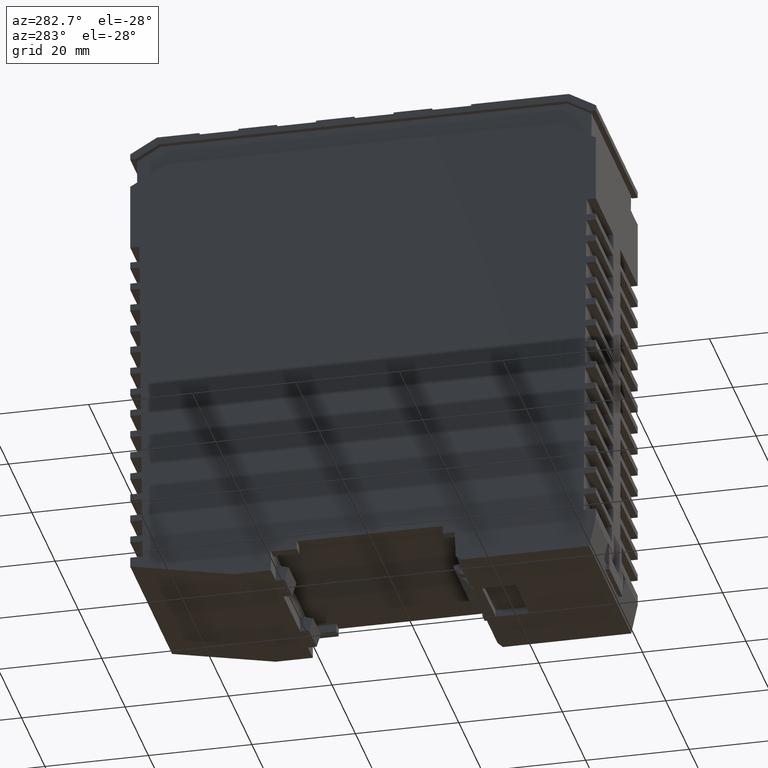
[diagram: clean part render]
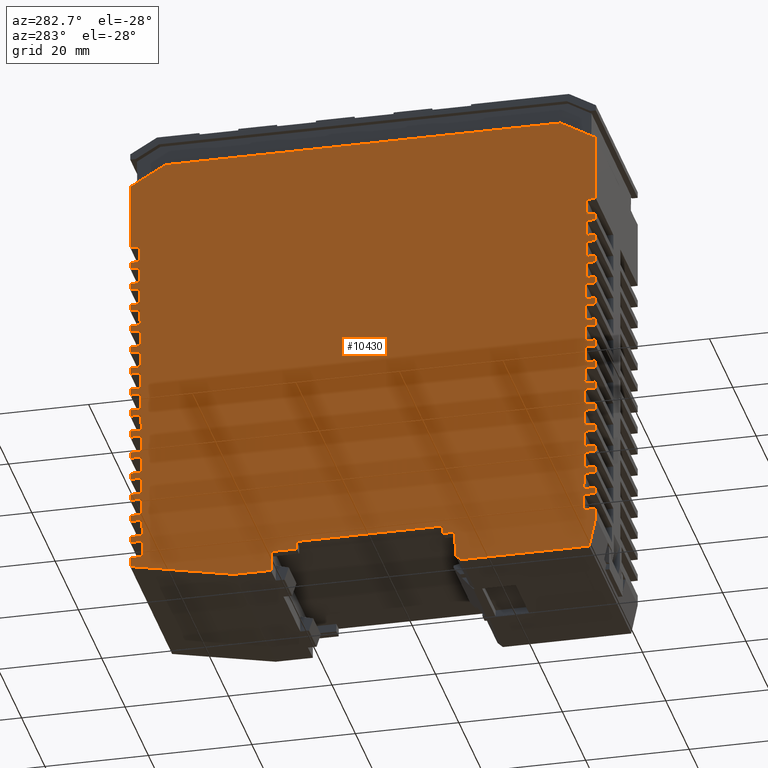
[diagram: same view with one face highlighted and labeled with its STEP entity id]
A machine part, auxiliary view. The second image highlights one B-rep face of the part: STEP entity #10430.
In plain terms, the highlighted planar face has unit normal (-1, 0, 0).
Its self-contained STEP definition (entity closure, byte-faithful):
#100=CARTESIAN_POINT('',(166.12362378727,69.6999999999998,
-34.799790209557));
#110=VERTEX_POINT('',#100);
#280=CARTESIAN_POINT('',(166.12362378727,67.3400426377198,
-34.799790209557));
#290=VERTEX_POINT('',#280);
#320=CARTESIAN_POINT('',(166.12362378727,24.6999996755416,
-34.799790209557));
#330=DIRECTION('',(-1.00166402301343E-25,1.,-8.52299310107004E-24));
#340=VECTOR('',#330,1.);
#350=LINE('',#320,#340);
#360=EDGE_CURVE('',#290,#110,#350,.T.);
#590=CARTESIAN_POINT('',(162.877748685351,67.3683689605996,
-34.7997902059751));
#600=VERTEX_POINT('',#590);
#630=CARTESIAN_POINT('',(124.800000351686,67.7006684360773,
-34.7997901639554));
#640=DIRECTION('',(-0.999961923064172,0.00872653549837376,
1.10348171245818E-9));
#650=VECTOR('',#640,1.);
#660=LINE('',#630,#650);
#670=EDGE_CURVE('',#290,#600,#660,.T.);
#1690=CARTESIAN_POINT('',(162.877748685351,24.6999996755416,
-34.7997902059751));
#1700=DIRECTION('',(1.00166402301343E-25,-1.,8.52299310107004E-24));
#1710=VECTOR('',#1700,1.);
#1720=LINE('',#1690,#1710);
#1730=CARTESIAN_POINT('',(162.877748685351,69.6999999999998,
-34.7997902059751));
#1740=VERTEX_POINT('',#1730);
#1750=EDGE_CURVE('',#1740,#600,#1720,.T.);
#1950=CARTESIAN_POINT('',(124.800000351686,24.6999996755416,
-34.7997901639554));
#1960=DIRECTION('',(-1.10352373126048E-9,-8.52299310118057E-24,-1.));
#1970=DIRECTION('',(1.00166402301343E-25,-1.,8.52299310107004E-24));
#1980=AXIS2_PLACEMENT_3D('',#1950,#1960,#1970);
#1990=PLANE('',#1980);
#2000=CARTESIAN_POINT('',(124.800000351686,69.6999999999998,
-34.7997901639554));
#2010=DIRECTION('',(-1.,-3.82894150652559E-24,1.10352373126048E-9));
#2020=VECTOR('',#2010,1.);
#2030=LINE('',#2000,#2020);
#2040=CARTESIAN_POINT('',(168.000000202668,69.6999999999998,
-34.7997902116276));
#2050=VERTEX_POINT('',#2040);
#2060=EDGE_CURVE('',#2050,#110,#2030,.T.);
#2070=ORIENTED_EDGE('',*,*,#2060,.F.);
#2080=ORIENTED_EDGE('',*,*,#360,.T.);
#2090=ORIENTED_EDGE('',*,*,#670,.F.);
#2100=ORIENTED_EDGE('',*,*,#1750,.T.);
#2110=CARTESIAN_POINT('',(161.621565686345,69.6999999999998,
-34.7997902045888));
#2120=VERTEX_POINT('',#2110);
#2130=EDGE_CURVE('',#1740,#2120,#2030,.T.);
#2140=ORIENTED_EDGE('',*,*,#2130,.F.);
#2150=CARTESIAN_POINT('',(161.621565686345,24.6999996755416,
-34.7997902045888));
#2160=DIRECTION('',(-1.00166402301343E-25,1.,-8.52299310107004E-24));
#2170=VECTOR('',#2160,1.);
#2180=LINE('',#2150,#2170);
#2190=CARTESIAN_POINT('',(161.621565686345,67.3793315035529,
-34.7997902045888));
#2200=VERTEX_POINT('',#2190);
#2210=EDGE_CURVE('',#2200,#2120,#2180,.T.);
#2220=ORIENTED_EDGE('',*,*,#2210,.T.);
#2230=CARTESIAN_POINT('',(158.379806786275,67.4076219048833,
-34.7997902010115));
#2240=VERTEX_POINT('',#2230);
#2250=EDGE_CURVE('',#2200,#2240,#660,.T.);
#2260=ORIENTED_EDGE('',*,*,#2250,.F.);
#2270=CARTESIAN_POINT('',(158.379806786275,24.6999996755416,
-34.7997902010115));
#2280=DIRECTION('',(1.00166402301343E-25,-1.,8.52299310107004E-24));
#2290=VECTOR('',#2280,1.);
#2300=LINE('',#2270,#2290);
#2310=CARTESIAN_POINT('',(158.379806786275,69.6999999999998,
-34.7997902010115));
#2320=VERTEX_POINT('',#2310);
#2330=EDGE_CURVE('',#2320,#2240,#2300,.T.);
#2340=ORIENTED_EDGE('',*,*,#2330,.T.);
#2350=CARTESIAN_POINT('',(157.119507585421,69.6999999999998,
-34.7997901996207));
#2360=VERTEX_POINT('',#2350);
#2370=EDGE_CURVE('',#2320,#2360,#2030,.T.);
#2380=ORIENTED_EDGE('',*,*,#2370,.F.);
#2390=CARTESIAN_POINT('',(157.119507585421,24.6999996755416,
-34.7997901996207));
#2400=DIRECTION('',(-1.00166402301343E-25,1.,-8.52299310107004E-24));
#2410=VECTOR('',#2400,1.);
#2420=LINE('',#2390,#2410);
#2430=CARTESIAN_POINT('',(157.119507585421,67.418620369386,
-34.7997901996207));
#2440=VERTEX_POINT('',#2430);
#2450=EDGE_CURVE('',#2440,#2360,#2420,.T.);
#2460=ORIENTED_EDGE('',*,*,#2450,.T.);
#2470=CARTESIAN_POINT('',(153.8818648872,67.4468748491671,
-34.7997901960479));
#2480=VERTEX_POINT('',#2470);
#2490=EDGE_CURVE('',#2440,#2480,#660,.T.);
#2500=ORIENTED_EDGE('',*,*,#2490,.F.);
#2510=CARTESIAN_POINT('',(153.8818648872,24.6999996755416,
-34.7997901960479));
#2520=DIRECTION('',(1.00166402301343E-25,-1.,8.52299310107004E-24));
#2530=VECTOR('',#2520,1.);
#2540=LINE('',#2510,#2530);
#2550=CARTESIAN_POINT('',(153.8818648872,69.6999999999998,
-34.7997901960479));
#2560=VERTEX_POINT('',#2550);
#2570=EDGE_CURVE('',#2560,#2480,#2540,.T.);
#2580=ORIENTED_EDGE('',*,*,#2570,.T.);
#2590=CARTESIAN_POINT('',(152.617449484496,69.6999999999998,
-34.7997901946526));
#2600=VERTEX_POINT('',#2590);
#2610=EDGE_CURVE('',#2560,#2600,#2030,.T.);
#2620=ORIENTED_EDGE('',*,*,#2610,.F.);
#2630=CARTESIAN_POINT('',(152.617449484496,24.6999996755416,
-34.7997901946526));
#2640=DIRECTION('',(-1.00166402301343E-25,1.,-8.52299310107004E-24));
#2650=VECTOR('',#2640,1.);
#2660=LINE('',#2630,#2650);
#2670=CARTESIAN_POINT('',(152.617449484496,67.4579092352191,
-34.7997901946526));
#2680=VERTEX_POINT('',#2670);
#2690=EDGE_CURVE('',#2680,#2600,#2660,.T.);
#2700=ORIENTED_EDGE('',*,*,#2690,.T.);
#2710=CARTESIAN_POINT('',(149.383922988124,67.4861277934508,
-34.7997901910843));
#2720=VERTEX_POINT('',#2710);
#2730=EDGE_CURVE('',#2680,#2720,#660,.T.);
#2740=ORIENTED_EDGE('',*,*,#2730,.F.);
#2750=CARTESIAN_POINT('',(149.383922988124,24.6999996755416,
-34.7997901910843));
#2760=DIRECTION('',(1.00166402301343E-25,-1.,8.52299310107004E-24));
#2770=VECTOR('',#2760,1.);
#2780=LINE('',#2750,#2770);
#2790=CARTESIAN_POINT('',(149.383922988124,69.6999999999998,
-34.7997901910843));
#2800=VERTEX_POINT('',#2790);
#2810=EDGE_CURVE('',#2800,#2720,#2780,.T.);
#2820=ORIENTED_EDGE('',*,*,#2810,.T.);
#2830=CARTESIAN_POINT('',(148.115391383572,69.6999999999998,
-34.7997901896845));
#2840=VERTEX_POINT('',#2830);
#2850=EDGE_CURVE('',#2800,#2840,#2030,.T.);
#2860=ORIENTED_EDGE('',*,*,#2850,.F.);
#2870=CARTESIAN_POINT('',(148.115391383572,24.6999996755416,
-34.7997901896845));
#2880=DIRECTION('',(-1.00166402301343E-25,1.,-8.52299310107004E-24));
#2890=VECTOR('',#2880,1.);
#2900=LINE('',#2870,#2890);
#2910=CARTESIAN_POINT('',(148.115391383572,67.4971981010521,
-34.7997901896845));
#2920=VERTEX_POINT('',#2910);
#2930=EDGE_CURVE('',#2920,#2840,#2900,.T.);
#2940=ORIENTED_EDGE('',*,*,#2930,.T.);
#2950=CARTESIAN_POINT('',(144.885981089049,67.5253807377346,
-34.7997901861207));
#2960=VERTEX_POINT('',#2950);
#2970=EDGE_CURVE('',#2920,#2960,#660,.T.);
#2980=ORIENTED_EDGE('',*,*,#2970,.F.);
#2990=CARTESIAN_POINT('',(144.885981089049,24.6999996755416,
-34.7997901861207));
#3000=DIRECTION('',(1.00166402301343E-25,-1.,8.52299310107004E-24));
#3010=VECTOR('',#3000,1.);
#3020=LINE('',#2990,#3010);
#3030=CARTESIAN_POINT('',(144.885981089049,69.6999999999998,
-34.7997901861207));
#3040=VERTEX_POINT('',#3030);
#3050=EDGE_CURVE('',#3040,#2960,#3020,.T.);
#3060=ORIENTED_EDGE('',*,*,#3050,.T.);
#3070=CARTESIAN_POINT('',(143.613333282647,69.6999999999998,
-34.7997901847163));
#3080=VERTEX_POINT('',#3070);
#3090=EDGE_CURVE('',#3040,#3080,#2030,.T.);
#3100=ORIENTED_EDGE('',*,*,#3090,.F.);
#3110=CARTESIAN_POINT('',(143.613333282647,24.6999996755416,
-34.7997901847163));
#3120=DIRECTION('',(-1.00166402301343E-25,1.,-8.52299310107004E-24));
#3130=VECTOR('',#3120,1.);
#3140=LINE('',#3110,#3130);
#3150=CARTESIAN_POINT('',(143.613333282647,67.5364869668852,
-34.7997901847163));
#3160=VERTEX_POINT('',#3150);
#3170=EDGE_CURVE('',#3160,#3080,#3140,.T.);
#3180=ORIENTED_EDGE('',*,*,#3170,.T.);
#3190=CARTESIAN_POINT('',(140.388039189973,67.5646336820183,
-34.7997901811571));
#3200=VERTEX_POINT('',#3190);
#3210=EDGE_CURVE('',#3160,#3200,#660,.T.);
#3220=ORIENTED_EDGE('',*,*,#3210,.F.);
#3230=CARTESIAN_POINT('',(140.388039189973,24.6999996755416,
-34.7997901811571));
#3240=DIRECTION('',(1.00166402301343E-25,-1.,8.52299310107004E-24));
#3250=VECTOR('',#3240,1.);
#3260=LINE('',#3230,#3250);
#3270=CARTESIAN_POINT('',(140.388039189973,69.6999999999998,
-34.7997901811571));
#3280=VERTEX_POINT('',#3270);
#3290=EDGE_CURVE('',#3280,#3200,#3260,.T.);
#3300=ORIENTED_EDGE('',*,*,#3290,.T.);
#3310=CARTESIAN_POINT('',(139.111275181723,69.6999999999998,
-34.7997901797482));
#3320=VERTEX_POINT('',#3310);
#3330=EDGE_CURVE('',#3280,#3320,#2030,.T.);
#3340=ORIENTED_EDGE('',*,*,#3330,.F.);
#3350=CARTESIAN_POINT('',(139.111275181723,24.6999996755416,
-34.7997901797482));
#3360=DIRECTION('',(-1.00166402301343E-25,1.,-8.52299310107004E-24));
#3370=VECTOR('',#3360,1.);
#3380=LINE('',#3350,#3370);
#3390=CARTESIAN_POINT('',(139.111275181723,67.5757758327183,
-34.7997901797482));
#3400=VERTEX_POINT('',#3390);
#3410=EDGE_CURVE('',#3400,#3320,#3380,.T.);
#3420=ORIENTED_EDGE('',*,*,#3410,.T.);
#3430=CARTESIAN_POINT('',(135.890097290898,67.6038866263021,
-34.7997901761935));
#3440=VERTEX_POINT('',#3430);
#3450=EDGE_CURVE('',#3400,#3440,#660,.T.);
#3460=ORIENTED_EDGE('',*,*,#3450,.F.);
#3470=CARTESIAN_POINT('',(135.890097290898,24.6999996755416,
-34.7997901761935));
#3480=DIRECTION('',(1.00166402301343E-25,-1.,8.52299310107004E-24));
#3490=VECTOR('',#3480,1.);
#3500=LINE('',#3470,#3490);
#3510=CARTESIAN_POINT('',(135.890097290898,69.6999999999998,
-34.7997901761935));
#3520=VERTEX_POINT('',#3510);
#3530=EDGE_CURVE('',#3520,#3440,#3500,.T.);
#3540=ORIENTED_EDGE('',*,*,#3530,.T.);
#3550=CARTESIAN_POINT('',(134.608819974645,69.6999999999998,
-34.7997901747796));
#3560=VERTEX_POINT('',#3550);
#3570=EDGE_CURVE('',#3520,#3560,#2030,.T.);
#3580=ORIENTED_EDGE('',*,*,#3570,.F.);
#3590=CARTESIAN_POINT('',(134.608819974645,24.6999996755416,
-34.7997901747796));
#3600=DIRECTION('',(-1.00166402301343E-25,1.,-8.52299310107004E-24));
#3610=VECTOR('',#3600,1.);
#3620=LINE('',#3590,#3610);
#3630=CARTESIAN_POINT('',(134.608819974645,67.6150681640443,
-34.7997901747796));
#3640=VERTEX_POINT('',#3630);
#3650=EDGE_CURVE('',#3640,#3560,#3620,.T.);
#3660=ORIENTED_EDGE('',*,*,#3650,.T.);
#3670=CARTESIAN_POINT('',(131.392155391822,67.6431395705858,
-34.79979017123));
#3680=VERTEX_POINT('',#3670);
#3690=EDGE_CURVE('',#3640,#3680,#660,.T.);
#3700=ORIENTED_EDGE('',*,*,#3690,.F.);
#3710=CARTESIAN_POINT('',(131.392155391822,24.6999996755416,
-34.79979017123));
#3720=DIRECTION('',(1.00166402301343E-25,-1.,8.52299310107004E-24));
#3730=VECTOR('',#3720,1.);
#3740=LINE('',#3710,#3730);
#3750=CARTESIAN_POINT('',(131.392155391822,69.6999999999998,
-34.79979017123));
#3760=VERTEX_POINT('',#3750);
#3770=EDGE_CURVE('',#3760,#3680,#3740,.T.);
#3780=ORIENTED_EDGE('',*,*,#3770,.T.);
#3790=CARTESIAN_POINT('',(130.107158979874,69.6999999999998,
-34.7997901698119));
#3800=VERTEX_POINT('',#3790);
#3810=EDGE_CURVE('',#3760,#3800,#2030,.T.);
#3820=ORIENTED_EDGE('',*,*,#3810,.F.);
#3830=CARTESIAN_POINT('',(130.107158979874,24.6999996755416,
-34.7997901698119));
#3840=DIRECTION('',(-1.00166402301343E-25,1.,-8.52299310107004E-24));
#3850=VECTOR('',#3840,1.);
#3860=LINE('',#3830,#3850);
#3870=CARTESIAN_POINT('',(130.107158979874,67.6543535643845,
-34.7997901698119));
#3880=VERTEX_POINT('',#3870);
#3890=EDGE_CURVE('',#3880,#3800,#3860,.T.);
#3900=ORIENTED_EDGE('',*,*,#3890,.T.);
#3910=CARTESIAN_POINT('',(126.894213492747,67.6823925148695,
-34.7997901662664));
#3920=VERTEX_POINT('',#3910);
#3930=EDGE_CURVE('',#3880,#3920,#660,.T.);
#3940=ORIENTED_EDGE('',*,*,#3930,.F.);
#3950=CARTESIAN_POINT('',(126.894213492747,24.6999996755416,
-34.7997901662664));
#3960=DIRECTION('',(1.00166402301343E-25,-1.,8.52299310107004E-24));
#3970=VECTOR('',#3960,1.);
#3980=LINE('',#3950,#3970);
#3990=CARTESIAN_POINT('',(126.894213492747,69.6999999999998,
-34.7997901662664));
#4000=VERTEX_POINT('',#3990);
#4010=EDGE_CURVE('',#4000,#3920,#3980,.T.);
#4020=ORIENTED_EDGE('',*,*,#4010,.T.);
#4030=CARTESIAN_POINT('',(125.605100878949,69.6999999999998,
-34.7997901648438));
#4040=VERTEX_POINT('',#4030);
#4050=EDGE_CURVE('',#4000,#4040,#2030,.T.);
#4060=ORIENTED_EDGE('',*,*,#4050,.F.);
#4070=CARTESIAN_POINT('',(125.605100878949,24.6999996755416,
-34.7997901648438));
#4080=DIRECTION('',(-1.00166402301343E-25,1.,-8.52299310107004E-24));
#4090=VECTOR('',#4080,1.);
#4100=LINE('',#4070,#4090);
#4110=CARTESIAN_POINT('',(125.605100878949,67.6936424302176,
-34.7997901648438));
#4120=VERTEX_POINT('',#4110);
#4130=EDGE_CURVE('',#4120,#4040,#4100,.T.);
#4140=ORIENTED_EDGE('',*,*,#4130,.T.);
#4150=CARTESIAN_POINT('',(122.396271593672,67.7216454591533,
-34.7997901613028));
#4160=VERTEX_POINT('',#4150);
#4170=EDGE_CURVE('',#4120,#4160,#660,.T.);
#4180=ORIENTED_EDGE('',*,*,#4170,.F.);
#4190=CARTESIAN_POINT('',(122.396271593672,24.6999996755416,
-34.7997901613028));
#4200=DIRECTION('',(1.00166402301343E-25,-1.,8.52299310107004E-24));
#4210=VECTOR('',#4200,1.);
#4220=LINE('',#4190,#4210);
#4230=CARTESIAN_POINT('',(122.396271593672,69.6999999999998,
-34.7997901613028));
#4240=VERTEX_POINT('',#4230);
#4250=EDGE_CURVE('',#4240,#4160,#4220,.T.);
#4260=ORIENTED_EDGE('',*,*,#4250,.T.);
#4270=CARTESIAN_POINT('',(121.103042778024,69.6999999999998,
-34.7997901598757));
#4280=VERTEX_POINT('',#4270);
#4290=EDGE_CURVE('',#4240,#4280,#2030,.T.);
#4300=ORIENTED_EDGE('',*,*,#4290,.F.);
#4310=CARTESIAN_POINT('',(121.103042778024,24.6999996755416,
-34.7997901598757));
#4320=DIRECTION('',(-1.00166402301343E-25,1.,-8.52299310107004E-24));
#4330=VECTOR('',#4320,1.);
#4340=LINE('',#4310,#4330);
#4350=CARTESIAN_POINT('',(121.103042778024,67.7329312960506,
-34.7997901598757));
#4360=VERTEX_POINT('',#4350);
#4370=EDGE_CURVE('',#4360,#4280,#4340,.T.);
#4380=ORIENTED_EDGE('',*,*,#4370,.T.);
#4390=CARTESIAN_POINT('',(117.898329694596,67.760898403437,
-34.7997901563392));
#4400=VERTEX_POINT('',#4390);
#4410=EDGE_CURVE('',#4360,#4400,#660,.T.);
#4420=ORIENTED_EDGE('',*,*,#4410,.F.);
#4430=CARTESIAN_POINT('',(117.898329694596,24.6999996755416,
-34.7997901563392));
#4440=DIRECTION('',(1.00166402301343E-25,-1.,8.52299310107004E-24));
#4450=VECTOR('',#4440,1.);
#4460=LINE('',#4430,#4450);
#4470=CARTESIAN_POINT('',(117.898329694596,69.6999999999998,
-34.7997901563392));
#4480=VERTEX_POINT('',#4470);
#4490=EDGE_CURVE('',#4480,#4400,#4460,.T.);
#4500=ORIENTED_EDGE('',*,*,#4490,.T.);
#4510=CARTESIAN_POINT('',(116.6009846771,69.6999999999998,
-34.7997901549076));
#4520=VERTEX_POINT('',#4510);
#4530=EDGE_CURVE('',#4480,#4520,#2030,.T.);
#4540=ORIENTED_EDGE('',*,*,#4530,.F.);
#4550=CARTESIAN_POINT('',(116.6009846771,24.6999996755416,
-34.7997901549076));
#4560=DIRECTION('',(-1.00166402301343E-25,1.,-8.52299310107004E-24));
#4570=VECTOR('',#4560,1.);
#4580=LINE('',#4550,#4570);
#4590=CARTESIAN_POINT('',(116.6009846771,67.7722201618837,
-34.7997901549076));
#4600=VERTEX_POINT('',#4590);
#4610=EDGE_CURVE('',#4600,#4520,#4580,.T.);
#4620=ORIENTED_EDGE('',*,*,#4610,.T.);
#4630=CARTESIAN_POINT('',(113.400387795521,67.8001513477208,
-34.7997901513756));
#4640=VERTEX_POINT('',#4630);
#4650=EDGE_CURVE('',#4600,#4640,#660,.T.);
#4660=ORIENTED_EDGE('',*,*,#4650,.F.);
#4670=CARTESIAN_POINT('',(113.400387795521,24.6999996755416,
-34.7997901513756));
#4680=DIRECTION('',(1.00166402301343E-25,-1.,8.52299310107004E-24));
#4690=VECTOR('',#4680,1.);
#4700=LINE('',#4670,#4690);
#4710=CARTESIAN_POINT('',(113.400387795521,69.6999999999998,
-34.7997901513756));
#4720=VERTEX_POINT('',#4710);
#4730=EDGE_CURVE('',#4720,#4640,#4700,.T.);
#4740=ORIENTED_EDGE('',*,*,#4730,.T.);
#4750=CARTESIAN_POINT('',(112.098926576175,69.6999999999998,
-34.7997901499394));
#4760=VERTEX_POINT('',#4750);
#4770=EDGE_CURVE('',#4720,#4760,#2030,.T.);
#4780=ORIENTED_EDGE('',*,*,#4770,.F.);
#4790=CARTESIAN_POINT('',(112.098926576175,24.6999996755416,
-34.7997901499394));
#4800=DIRECTION('',(-1.00166402301343E-25,1.,-8.52299310107004E-24));
#4810=VECTOR('',#4800,1.);
#4820=LINE('',#4790,#4810);
#4830=CARTESIAN_POINT('',(112.098926576175,67.8115090277168,
-34.7997901499394));
#4840=VERTEX_POINT('',#4830);
#4850=EDGE_CURVE('',#4840,#4760,#4820,.T.);
#4860=ORIENTED_EDGE('',*,*,#4850,.T.);
#4870=CARTESIAN_POINT('',(108.902445896445,67.8394042920045,
-34.799790146412));
#4880=VERTEX_POINT('',#4870);
#4890=EDGE_CURVE('',#4840,#4880,#660,.T.);
#4900=ORIENTED_EDGE('',*,*,#4890,.F.);
#4910=CARTESIAN_POINT('',(108.902445896445,24.6999996755416,
-34.799790146412));
#4920=DIRECTION('',(1.00166402301343E-25,-1.,8.52299310107004E-24));
#4930=VECTOR('',#4920,1.);
#4940=LINE('',#4910,#4930);
#4950=CARTESIAN_POINT('',(108.902445896445,69.6999999999998,
-34.799790146412));
#4960=VERTEX_POINT('',#4950);
#4970=EDGE_CURVE('',#4960,#4880,#4940,.T.);
#4980=ORIENTED_EDGE('',*,*,#4970,.T.);
#4990=CARTESIAN_POINT('',(107.596868475251,69.6999999999998,
-34.7997901449713));
#5000=VERTEX_POINT('',#4990);
#5010=EDGE_CURVE('',#4960,#5000,#2030,.T.);
#5020=ORIENTED_EDGE('',*,*,#5010,.F.);
#5030=CARTESIAN_POINT('',(107.596868475251,24.6999996755416,
-34.7997901449713));
#5040=DIRECTION('',(-1.00166402301343E-25,1.,-8.52299310107004E-24));
#5050=VECTOR('',#5040,1.);
#5060=LINE('',#5030,#5050);
#5070=CARTESIAN_POINT('',(107.596868475251,67.8507978935499,
-34.7997901449713));
#5080=VERTEX_POINT('',#5070);
#5090=EDGE_CURVE('',#5080,#5000,#5060,.T.);
#5100=ORIENTED_EDGE('',*,*,#5090,.T.);
#5110=CARTESIAN_POINT('',(104.40450399737,67.8786572362883,
-34.7997901414484));
#5120=VERTEX_POINT('',#5110);
#5130=EDGE_CURVE('',#5080,#5120,#660,.T.);
#5140=ORIENTED_EDGE('',*,*,#5130,.F.);
#5150=CARTESIAN_POINT('',(104.40450399737,24.6999996755416,
-34.7997901414484));
#5160=DIRECTION('',(1.00166402301343E-25,-1.,8.52299310107004E-24));
#5170=VECTOR('',#5160,1.);
#5180=LINE('',#5150,#5170);
#5190=CARTESIAN_POINT('',(104.40450399737,69.6999999999998,
-34.7997901414484));
#5200=VERTEX_POINT('',#5190);
#5210=EDGE_CURVE('',#5200,#5120,#5180,.T.);
#5220=ORIENTED_EDGE('',*,*,#5210,.T.);
#5230=CARTESIAN_POINT('',(103.094810374326,69.6999999999998,
-34.7997901400032));
#5240=VERTEX_POINT('',#5230);
#5250=EDGE_CURVE('',#5200,#5240,#2030,.T.);
#5260=ORIENTED_EDGE('',*,*,#5250,.F.);
#5270=CARTESIAN_POINT('',(103.094810374326,24.6999996755416,
-34.7997901400032));
#5280=DIRECTION('',(-1.00166402301343E-25,1.,-8.52299310107004E-24));
#5290=VECTOR('',#5280,1.);
#5300=LINE('',#5270,#5290);
#5310=CARTESIAN_POINT('',(103.094810374326,67.890086759383,
-34.7997901400032));
#5320=VERTEX_POINT('',#5310);
#5330=EDGE_CURVE('',#5320,#5240,#5300,.T.);
#5340=ORIENTED_EDGE('',*,*,#5330,.T.);
#5350=CARTESIAN_POINT('',(99.9065620982943,67.917910180572,
-34.7997901364849));
#5360=VERTEX_POINT('',#5350);
#5370=EDGE_CURVE('',#5320,#5360,#660,.T.);
#5380=ORIENTED_EDGE('',*,*,#5370,.F.);
#5390=CARTESIAN_POINT('',(99.9065620982943,24.6999996755416,
-34.7997901364849));
#5400=DIRECTION('',(1.00166402301343E-25,-1.,8.52299310107004E-24));
#5410=VECTOR('',#5400,1.);
#5420=LINE('',#5390,#5410);
#5430=CARTESIAN_POINT('',(99.9065620982943,69.6999999999998,
-34.7997901364849));
#5440=VERTEX_POINT('',#5430);
#5450=EDGE_CURVE('',#5440,#5360,#5420,.T.);
#5460=ORIENTED_EDGE('',*,*,#5450,.T.);
#5470=CARTESIAN_POINT('',(86.928203344718,69.6999999999998,
-34.7997901221629));
#5480=VERTEX_POINT('',#5470);
#5490=EDGE_CURVE('',#5440,#5480,#2030,.T.);
#5500=ORIENTED_EDGE('',*,*,#5490,.F.);
#5510=CARTESIAN_POINT('',(60.9474410438587,24.6999996755416,
-34.7997900934925));
#5520=DIRECTION('',(-0.500000000000002,-0.866025403784438,
5.51761865630249E-10));
#5530=VECTOR('',#5520,1.);
#5540=LINE('',#5510,#5530);
#5550=CARTESIAN_POINT('',(83.0000005007019,62.8961530917275,
-34.7997901178281));
#5560=VERTEX_POINT('',#5550);
#5570=EDGE_CURVE('',#5480,#5560,#5540,.T.);
#5580=ORIENTED_EDGE('',*,*,#5570,.F.);
#5590=CARTESIAN_POINT('',(83.0000005007023,24.6999996755416,
-34.7997901178281));
#5600=DIRECTION('',(1.09814329586091E-14,-1.,-3.59527877480944E-24));
#5610=VECTOR('',#5600,1.);
#5620=LINE('',#5590,#5610);
#5630=CARTESIAN_POINT('',(83.0000005007027,-13.4961537406442,
-34.7997901178281));
#5640=VERTEX_POINT('',#5630);
#5650=EDGE_CURVE('',#5560,#5640,#5620,.T.);
#5660=ORIENTED_EDGE('',*,*,#5650,.F.);
#5670=CARTESIAN_POINT('',(60.9474410438597,24.6999996755416,
-34.7997900934925));
#5680=DIRECTION('',(-0.499999999999999,0.86602540378444,
5.51761865630231E-10));
#5690=VECTOR('',#5680,1.);
#5700=LINE('',#5670,#5690);
#5710=CARTESIAN_POINT('',(86.9282029700667,-20.3000000000002,
-34.7997901221629));
#5720=VERTEX_POINT('',#5710);
#5730=EDGE_CURVE('',#5720,#5640,#5700,.T.);
#5740=ORIENTED_EDGE('',*,*,#5730,.T.);
#5750=CARTESIAN_POINT('',(124.800000351686,-20.3000000000002,
-34.7997901639554));
#5760=DIRECTION('',(1.,3.82894150652559E-24,-1.10352373126048E-9));
#5770=VECTOR('',#5760,1.);
#5780=LINE('',#5750,#5770);
#5790=CARTESIAN_POINT('',(99.9065620982942,-20.3000000000002,
-34.7997901364849));
#5800=VERTEX_POINT('',#5790);
#5810=EDGE_CURVE('',#5720,#5800,#5780,.T.);
#5820=ORIENTED_EDGE('',*,*,#5810,.F.);
#5830=CARTESIAN_POINT('',(99.9065620982942,24.6999996755416,
-34.7997901364849));
#5840=DIRECTION('',(-1.00166402301343E-25,1.,-8.52299310107004E-24));
#5850=VECTOR('',#5840,1.);
#5860=LINE('',#5830,#5850);
#5870=CARTESIAN_POINT('',(99.9065620982942,-18.5179101805724,
-34.7997901364849));
#5880=VERTEX_POINT('',#5870);
#5890=EDGE_CURVE('',#5800,#5880,#5860,.T.);
#5900=ORIENTED_EDGE('',*,*,#5890,.F.);
#5910=CARTESIAN_POINT('',(124.800000351686,-18.3006684360776,
-34.7997901639554));
#5920=DIRECTION('',(0.999961923064172,0.00872653549837376,
-1.10348171245818E-9));
#5930=VECTOR('',#5920,1.);
#5940=LINE('',#5910,#5930);
#5950=CARTESIAN_POINT('',(103.094810374326,-18.4900867593833,
-34.7997901400032));
#5960=VERTEX_POINT('',#5950);
#5970=EDGE_CURVE('',#5880,#5960,#5940,.T.);
#5980=ORIENTED_EDGE('',*,*,#5970,.F.);
#5990=CARTESIAN_POINT('',(103.094810374326,24.6999996755416,
-34.7997901400032));
#6000=DIRECTION('',(1.00166402301343E-25,-1.,8.52299310107004E-24));
#6010=VECTOR('',#6000,1.);
#6020=LINE('',#5990,#6010);
#6030=CARTESIAN_POINT('',(103.094810374326,-20.3000000000002,
-34.7997901400032));
#6040=VERTEX_POINT('',#6030);
#6050=EDGE_CURVE('',#5960,#6040,#6020,.T.);
#6060=ORIENTED_EDGE('',*,*,#6050,.F.);
#6070=CARTESIAN_POINT('',(104.40450399737,-20.3000000000002,
-34.7997901414484));
#6080=VERTEX_POINT('',#6070);
#6090=EDGE_CURVE('',#6040,#6080,#5780,.T.);
#6100=ORIENTED_EDGE('',*,*,#6090,.F.);
#6110=CARTESIAN_POINT('',(104.40450399737,24.6999996755416,
-34.7997901414484));
#6120=DIRECTION('',(-1.00166402301343E-25,1.,-8.52299310107004E-24));
#6130=VECTOR('',#6120,1.);
#6140=LINE('',#6110,#6130);
#6150=CARTESIAN_POINT('',(104.40450399737,-18.4786572362886,
-34.7997901414484));
#6160=VERTEX_POINT('',#6150);
#6170=EDGE_CURVE('',#6080,#6160,#6140,.T.);
#6180=ORIENTED_EDGE('',*,*,#6170,.F.);
#6190=CARTESIAN_POINT('',(107.596868475251,-18.4507978935502,
-34.7997901449713));
#6200=VERTEX_POINT('',#6190);
#6210=EDGE_CURVE('',#6160,#6200,#5940,.T.);
#6220=ORIENTED_EDGE('',*,*,#6210,.F.);
#6230=CARTESIAN_POINT('',(107.596868475251,24.6999996755416,
-34.7997901449713));
#6240=DIRECTION('',(1.00166402301343E-25,-1.,8.52299310107004E-24));
#6250=VECTOR('',#6240,1.);
#6260=LINE('',#6230,#6250);
#6270=CARTESIAN_POINT('',(107.596868475251,-20.3000000000002,
-34.7997901449713));
#6280=VERTEX_POINT('',#6270);
#6290=EDGE_CURVE('',#6200,#6280,#6260,.T.);
#6300=ORIENTED_EDGE('',*,*,#6290,.F.);
#6310=CARTESIAN_POINT('',(108.902445896445,-20.3000000000002,
-34.799790146412));
#6320=VERTEX_POINT('',#6310);
#6330=EDGE_CURVE('',#6280,#6320,#5780,.T.);
#6340=ORIENTED_EDGE('',*,*,#6330,.F.);
#6350=CARTESIAN_POINT('',(108.902445896445,24.6999996755416,
-34.799790146412));
#6360=DIRECTION('',(-1.00166402301343E-25,1.,-8.52299310107004E-24));
#6370=VECTOR('',#6360,1.);
#6380=LINE('',#6350,#6370);
#6390=CARTESIAN_POINT('',(108.902445896445,-18.4394042920049,
-34.799790146412));
#6400=VERTEX_POINT('',#6390);
#6410=EDGE_CURVE('',#6320,#6400,#6380,.T.);
#6420=ORIENTED_EDGE('',*,*,#6410,.F.);
#6430=CARTESIAN_POINT('',(112.098926576175,-18.4115090277172,
-34.7997901499394));
#6440=VERTEX_POINT('',#6430);
#6450=EDGE_CURVE('',#6400,#6440,#5940,.T.);
#6460=ORIENTED_EDGE('',*,*,#6450,.F.);
#6470=CARTESIAN_POINT('',(112.098926576175,24.6999996755416,
-34.7997901499394));
#6480=DIRECTION('',(1.00166402301343E-25,-1.,8.52299310107004E-24));
#6490=VECTOR('',#6480,1.);
#6500=LINE('',#6470,#6490);
#6510=CARTESIAN_POINT('',(112.098926576175,-20.3000000000002,
-34.7997901499394));
#6520=VERTEX_POINT('',#6510);
#6530=EDGE_CURVE('',#6440,#6520,#6500,.T.);
#6540=ORIENTED_EDGE('',*,*,#6530,.F.);
#6550=CARTESIAN_POINT('',(113.400387795521,-20.3000000000002,
-34.7997901513756));
#6560=VERTEX_POINT('',#6550);
#6570=EDGE_CURVE('',#6520,#6560,#5780,.T.);
#6580=ORIENTED_EDGE('',*,*,#6570,.F.);
#6590=CARTESIAN_POINT('',(113.400387795521,24.6999996755416,
-34.7997901513756));
#6600=DIRECTION('',(-1.00166402301343E-25,1.,-8.52299310107004E-24));
#6610=VECTOR('',#6600,1.);
#6620=LINE('',#6590,#6610);
#6630=CARTESIAN_POINT('',(113.400387795521,-18.4001513477212,
-34.7997901513756));
#6640=VERTEX_POINT('',#6630);
#6650=EDGE_CURVE('',#6560,#6640,#6620,.T.);
#6660=ORIENTED_EDGE('',*,*,#6650,.F.);
#6670=CARTESIAN_POINT('',(116.6009846771,-18.3722201618841,
-34.7997901549075));
#6680=VERTEX_POINT('',#6670);
#6690=EDGE_CURVE('',#6640,#6680,#5940,.T.);
#6700=ORIENTED_EDGE('',*,*,#6690,.F.);
#6710=CARTESIAN_POINT('',(116.6009846771,24.6999996755416,
-34.7997901549076));
#6720=DIRECTION('',(1.00166402301343E-25,-1.,8.52299310107004E-24));
#6730=VECTOR('',#6720,1.);
#6740=LINE('',#6710,#6730);
#6750=CARTESIAN_POINT('',(116.6009846771,-20.3000000000002,
-34.7997901549076));
#6760=VERTEX_POINT('',#6750);
#6770=EDGE_CURVE('',#6680,#6760,#6740,.T.);
#6780=ORIENTED_EDGE('',*,*,#6770,.F.);
#6790=CARTESIAN_POINT('',(117.898329694596,-20.3000000000002,
-34.7997901563392));
#6800=VERTEX_POINT('',#6790);
#6810=EDGE_CURVE('',#6760,#6800,#5780,.T.);
#6820=ORIENTED_EDGE('',*,*,#6810,.F.);
#6830=CARTESIAN_POINT('',(117.898329694596,24.6999996755416,
-34.7997901563392));
#6840=DIRECTION('',(-1.00166402301343E-25,1.,-8.52299310107004E-24));
#6850=VECTOR('',#6840,1.);
#6860=LINE('',#6830,#6850);
#6870=CARTESIAN_POINT('',(117.898329694596,-18.3608984034374,
-34.7997901563392));
#6880=VERTEX_POINT('',#6870);
#6890=EDGE_CURVE('',#6800,#6880,#6860,.T.);
#6900=ORIENTED_EDGE('',*,*,#6890,.F.);
#6910=CARTESIAN_POINT('',(121.103042778024,-18.332931296051,
-34.7997901598757));
#6920=VERTEX_POINT('',#6910);
#6930=EDGE_CURVE('',#6880,#6920,#5940,.T.);
#6940=ORIENTED_EDGE('',*,*,#6930,.F.);
#6950=CARTESIAN_POINT('',(121.103042778024,24.6999996755416,
-34.7997901598757));
#6960=DIRECTION('',(1.00166402301343E-25,-1.,8.52299310107004E-24));
#6970=VECTOR('',#6960,1.);
#6980=LINE('',#6950,#6970);
#6990=CARTESIAN_POINT('',(121.103042778024,-20.3000000000002,
-34.7997901598757));
#7000=VERTEX_POINT('',#6990);
#7010=EDGE_CURVE('',#6920,#7000,#6980,.T.);
#7020=ORIENTED_EDGE('',*,*,#7010,.F.);
#7030=CARTESIAN_POINT('',(122.396271593672,-20.3000000000002,
-34.7997901613028));
#7040=VERTEX_POINT('',#7030);
#7050=EDGE_CURVE('',#7000,#7040,#5780,.T.);
#7060=ORIENTED_EDGE('',*,*,#7050,.F.);
#7070=CARTESIAN_POINT('',(122.396271593671,24.6999996755416,
-34.7997901613028));
#7080=DIRECTION('',(-1.00166402301343E-25,1.,-8.52299310107004E-24));
#7090=VECTOR('',#7080,1.);
#7100=LINE('',#7070,#7090);
#7110=CARTESIAN_POINT('',(122.396271593672,-18.3216454591537,
-34.7997901613028));
#7120=VERTEX_POINT('',#7110);
#7130=EDGE_CURVE('',#7040,#7120,#7100,.T.);
#7140=ORIENTED_EDGE('',*,*,#7130,.F.);
#7150=CARTESIAN_POINT('',(125.605100878949,-18.2936424302179,
-34.7997901648438));
#7160=VERTEX_POINT('',#7150);
#7170=EDGE_CURVE('',#7120,#7160,#5940,.T.);
#7180=ORIENTED_EDGE('',*,*,#7170,.F.);
#7190=CARTESIAN_POINT('',(125.605100878949,24.6999996755416,
-34.7997901648438));
#7200=DIRECTION('',(1.00166402301343E-25,-1.,8.52299310107004E-24));
#7210=VECTOR('',#7200,1.);
#7220=LINE('',#7190,#7210);
#7230=CARTESIAN_POINT('',(125.605100878949,-20.3000000000002,
-34.7997901648438));
#7240=VERTEX_POINT('',#7230);
#7250=EDGE_CURVE('',#7160,#7240,#7220,.T.);
#7260=ORIENTED_EDGE('',*,*,#7250,.F.);
#7270=CARTESIAN_POINT('',(126.894213492747,-20.3000000000002,
-34.7997901662664));
#7280=VERTEX_POINT('',#7270);
#7290=EDGE_CURVE('',#7240,#7280,#5780,.T.);
#7300=ORIENTED_EDGE('',*,*,#7290,.F.);
#7310=CARTESIAN_POINT('',(126.894213492747,24.6999996755416,
-34.7997901662664));
#7320=DIRECTION('',(-1.00166402301343E-25,1.,-8.52299310107004E-24));
#7330=VECTOR('',#7320,1.);
#7340=LINE('',#7310,#7330);
#7350=CARTESIAN_POINT('',(126.894213492747,-18.2823925148699,
-34.7997901662664));
#7360=VERTEX_POINT('',#7350);
#7370=EDGE_CURVE('',#7280,#7360,#7340,.T.);
#7380=ORIENTED_EDGE('',*,*,#7370,.F.);
#7390=CARTESIAN_POINT('',(130.107158979873,-18.2543535643848,
-34.7997901698119));
#7400=VERTEX_POINT('',#7390);
#7410=EDGE_CURVE('',#7360,#7400,#5940,.T.);
#7420=ORIENTED_EDGE('',*,*,#7410,.F.);
#7430=CARTESIAN_POINT('',(130.107158979873,24.6999996755416,
-34.7997901698119));
#7440=DIRECTION('',(1.00166402301343E-25,-1.,8.52299310107004E-24));
#7450=VECTOR('',#7440,1.);
#7460=LINE('',#7430,#7450);
#7470=CARTESIAN_POINT('',(130.107158979873,-20.3000000000002,
-34.7997901698119));
#7480=VERTEX_POINT('',#7470);
#7490=EDGE_CURVE('',#7400,#7480,#7460,.T.);
#7500=ORIENTED_EDGE('',*,*,#7490,.F.);
#7510=CARTESIAN_POINT('',(131.392155391822,-20.3000000000002,
-34.79979017123));
#7520=VERTEX_POINT('',#7510);
#7530=EDGE_CURVE('',#7480,#7520,#5780,.T.);
#7540=ORIENTED_EDGE('',*,*,#7530,.F.);
#7550=CARTESIAN_POINT('',(131.392155391822,24.6999996755416,
-34.79979017123));
#7560=DIRECTION('',(-1.00166402301343E-25,1.,-8.52299310107004E-24));
#7570=VECTOR('',#7560,1.);
#7580=LINE('',#7550,#7570);
#7590=CARTESIAN_POINT('',(131.392155391822,-18.2431395705862,
-34.79979017123));
#7600=VERTEX_POINT('',#7590);
#7610=EDGE_CURVE('',#7520,#7600,#7580,.T.);
#7620=ORIENTED_EDGE('',*,*,#7610,.F.);
#7630=CARTESIAN_POINT('',(134.608819974645,-18.2150681640447,
-34.7997901747796));
#7640=VERTEX_POINT('',#7630);
#7650=EDGE_CURVE('',#7600,#7640,#5940,.T.);
#7660=ORIENTED_EDGE('',*,*,#7650,.F.);
#7670=CARTESIAN_POINT('',(134.608819974645,24.6999996755416,
-34.7997901747796));
#7680=DIRECTION('',(1.00166402301343E-25,-1.,8.52299310107004E-24));
#7690=VECTOR('',#7680,1.);
#7700=LINE('',#7670,#7690);
#7710=CARTESIAN_POINT('',(134.608819974645,-20.3000000000002,
-34.7997901747796));
#7720=VERTEX_POINT('',#7710);
#7730=EDGE_CURVE('',#7640,#7720,#7700,.T.);
#7740=ORIENTED_EDGE('',*,*,#7730,.F.);
#7750=CARTESIAN_POINT('',(135.890097290898,-20.3000000000002,
-34.7997901761935));
#7760=VERTEX_POINT('',#7750);
#7770=EDGE_CURVE('',#7720,#7760,#5780,.T.);
#7780=ORIENTED_EDGE('',*,*,#7770,.F.);
#7790=CARTESIAN_POINT('',(135.890097290898,24.6999996755416,
-34.7997901761935));
#7800=DIRECTION('',(-1.00166402301343E-25,1.,-8.52299310107004E-24));
#7810=VECTOR('',#7800,1.);
#7820=LINE('',#7790,#7810);
#7830=CARTESIAN_POINT('',(135.890097290898,-18.2038866263024,
-34.7997901761935));
#7840=VERTEX_POINT('',#7830);
#7850=EDGE_CURVE('',#7760,#7840,#7820,.T.);
#7860=ORIENTED_EDGE('',*,*,#7850,.F.);
#7870=CARTESIAN_POINT('',(139.111275181723,-18.1757758327187,
-34.7997901797482));
#7880=VERTEX_POINT('',#7870);
#7890=EDGE_CURVE('',#7840,#7880,#5940,.T.);
#7900=ORIENTED_EDGE('',*,*,#7890,.F.);
#7910=CARTESIAN_POINT('',(139.111275181723,24.6999996755416,
-34.7997901797482));
#7920=DIRECTION('',(1.00166402301343E-25,-1.,8.52299310107004E-24));
#7930=VECTOR('',#7920,1.);
#7940=LINE('',#7910,#7930);
#7950=CARTESIAN_POINT('',(139.111275181723,-20.3000000000002,
-34.7997901797482));
#7960=VERTEX_POINT('',#7950);
#7970=EDGE_CURVE('',#7880,#7960,#7940,.T.);
#7980=ORIENTED_EDGE('',*,*,#7970,.F.);
#7990=CARTESIAN_POINT('',(140.388039189973,-20.3000000000002,
-34.7997901811571));
#8000=VERTEX_POINT('',#7990);
#8010=EDGE_CURVE('',#7960,#8000,#5780,.T.);
#8020=ORIENTED_EDGE('',*,*,#8010,.F.);
#8030=CARTESIAN_POINT('',(140.388039189973,24.6999996755416,
-34.7997901811571));
#8040=DIRECTION('',(-1.00166402301343E-25,1.,-8.52299310107004E-24));
#8050=VECTOR('',#8040,1.);
#8060=LINE('',#8030,#8050);
#8070=CARTESIAN_POINT('',(140.388039189973,-18.1646336820187,
-34.7997901811571));
#8080=VERTEX_POINT('',#8070);
#8090=EDGE_CURVE('',#8000,#8080,#8060,.T.);
#8100=ORIENTED_EDGE('',*,*,#8090,.F.);
#8110=CARTESIAN_POINT('',(143.613333282647,-18.1364869668856,
-34.7997901847163));
#8120=VERTEX_POINT('',#8110);
#8130=EDGE_CURVE('',#8080,#8120,#5940,.T.);
#8140=ORIENTED_EDGE('',*,*,#8130,.F.);
#8150=CARTESIAN_POINT('',(143.613333282647,24.6999996755416,
-34.7997901847163));
#8160=DIRECTION('',(1.00166402301343E-25,-1.,8.52299310107004E-24));
#8170=VECTOR('',#8160,1.);
#8180=LINE('',#8150,#8170);
#8190=CARTESIAN_POINT('',(143.613333282647,-20.3000000000002,
-34.7997901847163));
#8200=VERTEX_POINT('',#8190);
#8210=EDGE_CURVE('',#8120,#8200,#8180,.T.);
#8220=ORIENTED_EDGE('',*,*,#8210,.F.);
#8230=CARTESIAN_POINT('',(144.885981089049,-20.3000000000002,
-34.7997901861207));
#8240=VERTEX_POINT('',#8230);
#8250=EDGE_CURVE('',#8200,#8240,#5780,.T.);
#8260=ORIENTED_EDGE('',*,*,#8250,.F.);
#8270=CARTESIAN_POINT('',(144.885981089049,24.6999996755416,
-34.7997901861207));
#8280=DIRECTION('',(-1.00166402301343E-25,1.,-8.52299310107004E-24));
#8290=VECTOR('',#8280,1.);
#8300=LINE('',#8270,#8290);
#8310=CARTESIAN_POINT('',(144.885981089049,-18.1253807377349,
-34.7997901861207));
#8320=VERTEX_POINT('',#8310);
#8330=EDGE_CURVE('',#8240,#8320,#8300,.T.);
#8340=ORIENTED_EDGE('',*,*,#8330,.F.);
#8350=CARTESIAN_POINT('',(148.115391383572,-18.0971981010525,
-34.7997901896845));
#8360=VERTEX_POINT('',#8350);
#8370=EDGE_CURVE('',#8320,#8360,#5940,.T.);
#8380=ORIENTED_EDGE('',*,*,#8370,.F.);
#8390=CARTESIAN_POINT('',(148.115391383572,24.6999996755416,
-34.7997901896845));
#8400=DIRECTION('',(1.00166402301343E-25,-1.,8.52299310107004E-24));
#8410=VECTOR('',#8400,1.);
#8420=LINE('',#8390,#8410);
#8430=CARTESIAN_POINT('',(148.115391383572,-20.3000000000002,
-34.7997901896845));
#8440=VERTEX_POINT('',#8430);
#8450=EDGE_CURVE('',#8360,#8440,#8420,.T.);
#8460=ORIENTED_EDGE('',*,*,#8450,.F.);
#8470=CARTESIAN_POINT('',(149.383922988124,-20.3000000000002,
-34.7997901910843));
#8480=VERTEX_POINT('',#8470);
#8490=EDGE_CURVE('',#8440,#8480,#5780,.T.);
#8500=ORIENTED_EDGE('',*,*,#8490,.F.);
#8510=CARTESIAN_POINT('',(149.383922988124,24.6999996755416,
-34.7997901910843));
#8520=DIRECTION('',(-1.00166402301343E-25,1.,-8.52299310107004E-24));
#8530=VECTOR('',#8520,1.);
#8540=LINE('',#8510,#8530);
#8550=CARTESIAN_POINT('',(149.383922988124,-18.0861277934512,
-34.7997901910843));
#8560=VERTEX_POINT('',#8550);
#8570=EDGE_CURVE('',#8480,#8560,#8540,.T.);
#8580=ORIENTED_EDGE('',*,*,#8570,.F.);
#8590=CARTESIAN_POINT('',(152.617449484496,-18.0579092352194,
-34.7997901946526));
#8600=VERTEX_POINT('',#8590);
#8610=EDGE_CURVE('',#8560,#8600,#5940,.T.);
#8620=ORIENTED_EDGE('',*,*,#8610,.F.);
#8630=CARTESIAN_POINT('',(152.617449484496,24.6999996755416,
-34.7997901946526));
#8640=DIRECTION('',(1.00166402301343E-25,-1.,8.52299310107004E-24));
#8650=VECTOR('',#8640,1.);
#8660=LINE('',#8630,#8650);
#8670=CARTESIAN_POINT('',(152.617449484496,-20.3000000000002,
-34.7997901946526));
#8680=VERTEX_POINT('',#8670);
#8690=EDGE_CURVE('',#8600,#8680,#8660,.T.);
#8700=ORIENTED_EDGE('',*,*,#8690,.F.);
#8710=CARTESIAN_POINT('',(153.8818648872,-20.3000000000002,
-34.7997901960479));
#8720=VERTEX_POINT('',#8710);
#8730=EDGE_CURVE('',#8680,#8720,#5780,.T.);
#8740=ORIENTED_EDGE('',*,*,#8730,.F.);
#8750=CARTESIAN_POINT('',(153.8818648872,24.6999996755416,
-34.7997901960479));
#8760=DIRECTION('',(-1.00166402301343E-25,1.,-8.52299310107004E-24));
#8770=VECTOR('',#8760,1.);
#8780=LINE('',#8750,#8770);
#8790=CARTESIAN_POINT('',(153.8818648872,-18.0468748491675,
-34.7997901960479));
#8800=VERTEX_POINT('',#8790);
#8810=EDGE_CURVE('',#8720,#8800,#8780,.T.);
#8820=ORIENTED_EDGE('',*,*,#8810,.F.);
#8830=CARTESIAN_POINT('',(157.119507585421,-18.0186203693864,
-34.7997901996207));
#8840=VERTEX_POINT('',#8830);
#8850=EDGE_CURVE('',#8800,#8840,#5940,.T.);
#8860=ORIENTED_EDGE('',*,*,#8850,.F.);
#8870=CARTESIAN_POINT('',(157.119507585421,24.6999996755416,
-34.7997901996207));
#8880=DIRECTION('',(1.00166402301343E-25,-1.,8.52299310107004E-24));
#8890=VECTOR('',#8880,1.);
#8900=LINE('',#8870,#8890);
#8910=CARTESIAN_POINT('',(157.119507585421,-20.3000000000002,
-34.7997901996207));
#8920=VERTEX_POINT('',#8910);
#8930=EDGE_CURVE('',#8840,#8920,#8900,.T.);
#8940=ORIENTED_EDGE('',*,*,#8930,.F.);
#8950=CARTESIAN_POINT('',(158.379806786275,-20.3000000000002,
-34.7997902010115));
#8960=VERTEX_POINT('',#8950);
#8970=EDGE_CURVE('',#8920,#8960,#5780,.T.);
#8980=ORIENTED_EDGE('',*,*,#8970,.F.);
#8990=CARTESIAN_POINT('',(158.379806786275,24.6999996755416,
-34.7997902010115));
#9000=DIRECTION('',(-1.00166402301343E-25,1.,-8.52299310107004E-24));
#9010=VECTOR('',#9000,1.);
#9020=LINE('',#8990,#9010);
#9030=CARTESIAN_POINT('',(158.379806786275,-18.0076219048837,
-34.7997902010115));
#9040=VERTEX_POINT('',#9030);
#9050=EDGE_CURVE('',#8960,#9040,#9020,.T.);
#9060=ORIENTED_EDGE('',*,*,#9050,.F.);
#9070=CARTESIAN_POINT('',(161.621565686345,-17.9793315035533,
-34.7997902045888));
#9080=VERTEX_POINT('',#9070);
#9090=EDGE_CURVE('',#9040,#9080,#5940,.T.);
#9100=ORIENTED_EDGE('',*,*,#9090,.F.);
#9110=CARTESIAN_POINT('',(161.621565686345,24.6999996755416,
-34.7997902045888));
#9120=DIRECTION('',(1.00166402301343E-25,-1.,8.52299310107004E-24));
#9130=VECTOR('',#9120,1.);
#9140=LINE('',#9110,#9130);
#9150=CARTESIAN_POINT('',(161.621565686345,-20.3000000000002,
-34.7997902045888));
#9160=VERTEX_POINT('',#9150);
#9170=EDGE_CURVE('',#9080,#9160,#9140,.T.);
#9180=ORIENTED_EDGE('',*,*,#9170,.F.);
#9190=CARTESIAN_POINT('',(162.877748685351,-20.3000000000002,
-34.7997902059751));
#9200=VERTEX_POINT('',#9190);
#9210=EDGE_CURVE('',#9160,#9200,#5780,.T.);
#9220=ORIENTED_EDGE('',*,*,#9210,.F.);
#9230=CARTESIAN_POINT('',(162.877748685351,24.6999996755416,
-34.7997902059751));
#9240=DIRECTION('',(-1.00166402301343E-25,1.,-8.52299310107004E-24));
#9250=VECTOR('',#9240,1.);
#9260=LINE('',#9230,#9250);
#9270=CARTESIAN_POINT('',(162.877748685351,-17.9683689605999,
-34.7997902059751));
#9280=VERTEX_POINT('',#9270);
#9290=EDGE_CURVE('',#9200,#9280,#9260,.T.);
#9300=ORIENTED_EDGE('',*,*,#9290,.F.);
#9310=CARTESIAN_POINT('',(166.12362378727,-17.9400426377202,
-34.799790209557));
#9320=VERTEX_POINT('',#9310);
#9330=EDGE_CURVE('',#9280,#9320,#5940,.T.);
#9340=ORIENTED_EDGE('',*,*,#9330,.F.);
#9350=CARTESIAN_POINT('',(166.12362378727,24.6999996755416,
-34.799790209557));
#9360=DIRECTION('',(1.00166402301343E-25,-1.,8.52299310107004E-24));
#9370=VECTOR('',#9360,1.);
#9380=LINE('',#9350,#9370);
#9390=CARTESIAN_POINT('',(166.12362378727,-20.3000000000002,
-34.799790209557));
#9400=VERTEX_POINT('',#9390);
#9410=EDGE_CURVE('',#9320,#9400,#9380,.T.);
#9420=ORIENTED_EDGE('',*,*,#9410,.F.);
#9430=CARTESIAN_POINT('',(168.000000202669,-20.3000000000002,
-34.7997902116276));
#9440=VERTEX_POINT('',#9430);
#9450=EDGE_CURVE('',#9400,#9440,#5780,.T.);
#9460=ORIENTED_EDGE('',*,*,#9450,.F.);
#9470=CARTESIAN_POINT('',(124.800000351686,-29.4403449017009,
-34.7997901639554));
#9480=DIRECTION('',(0.978341066011804,0.206999416798423,
-1.0796225836107E-9));
#9490=VECTOR('',#9480,1.);
#9500=LINE('',#9470,#9490);
#9510=CARTESIAN_POINT('',(174.000000202669,-19.0305076481627,
-34.7997902182487));
#9520=VERTEX_POINT('',#9510);
#9530=EDGE_CURVE('',#9440,#9520,#9500,.T.);
#9540=ORIENTED_EDGE('',*,*,#9530,.F.);
#9550=CARTESIAN_POINT('',(174.000000202669,24.6999996755416,
-34.7997902182487));
#9560=DIRECTION('',(1.00166402301343E-25,-1.,8.52299310107004E-24));
#9570=VECTOR('',#9560,1.);
#9580=LINE('',#9550,#9570);
#9590=CARTESIAN_POINT('',(174.000000202669,5.77681967902644,
-34.7997902182487));
#9600=VERTEX_POINT('',#9590);
#9610=EDGE_CURVE('',#9600,#9520,#9580,.T.);
#9620=ORIENTED_EDGE('',*,*,#9610,.T.);
#9630=CARTESIAN_POINT('',(155.726097696382,24.6999996755416,
-34.799790198083));
#9640=DIRECTION('',(-0.69465837045896,0.719339800338688,
7.6657199692019E-10));
#9650=VECTOR('',#9640,1.);
#9660=LINE('',#9630,#9650);
#9670=CARTESIAN_POINT('',(173.000609357434,6.8117191945924,
-34.7997902171459));
#9680=VERTEX_POINT('',#9670);
#9690=EDGE_CURVE('',#9600,#9680,#9660,.T.);
#9700=ORIENTED_EDGE('',*,*,#9690,.F.);
#9710=CARTESIAN_POINT('',(124.800000351686,8.49492155104365,
-34.7997901639554));
#9720=DIRECTION('',(-0.999390827019096,0.034899496702494,
1.10285149441961E-9));
#9730=VECTOR('',#9720,1.);
#9740=LINE('',#9710,#9730);
#9750=CARTESIAN_POINT('',(168.000000202669,6.98634431420424,
-34.7997902116276));
#9760=VERTEX_POINT('',#9750);
#9770=EDGE_CURVE('',#9680,#9760,#9740,.T.);
#9780=ORIENTED_EDGE('',*,*,#9770,.F.);
#9790=CARTESIAN_POINT('',(168.000000202669,24.6999996755416,
-34.7997902116276));
#9800=DIRECTION('',(-1.00166402301343E-25,1.,-8.52299310107004E-24));
#9810=VECTOR('',#9800,1.);
#9820=LINE('',#9790,#9810);
#9830=CARTESIAN_POINT('',(168.000000202669,9.2999999999998,
-34.7997902116276));
#9840=VERTEX_POINT('',#9830);
#9850=EDGE_CURVE('',#9760,#9840,#9820,.T.);
#9860=ORIENTED_EDGE('',*,*,#9850,.F.);
#9870=CARTESIAN_POINT('',(124.800000351686,9.2999999999998,
-34.7997901639554));
#9880=DIRECTION('',(-1.,-3.82894150652559E-24,1.10352373126048E-9));
#9890=VECTOR('',#9880,1.);
#9900=LINE('',#9870,#9890);
#9910=CARTESIAN_POINT('',(166.400000202669,9.2999999999998,
-34.799790209862));
#9920=VERTEX_POINT('',#9910);
#9930=EDGE_CURVE('',#9840,#9920,#9900,.T.);
#9940=ORIENTED_EDGE('',*,*,#9930,.F.);
#9950=CARTESIAN_POINT('',(166.400000202669,24.6999996755416,
-34.799790209862));
#9960=DIRECTION('',(-1.00166402301343E-25,1.,-8.52299310107004E-24));
#9970=VECTOR('',#9960,1.);
#9980=LINE('',#9950,#9970);
#9990=CARTESIAN_POINT('',(166.400000202669,37.4999999999998,
-34.799790209862));
#10000=VERTEX_POINT('',#9990);
#10010=EDGE_CURVE('',#9920,#10000,#9980,.T.);
#10020=ORIENTED_EDGE('',*,*,#10010,.F.);
#10030=CARTESIAN_POINT('',(124.800000351686,37.4999999999998,
-34.7997901639554));
#10040=DIRECTION('',(1.,3.82894150652559E-24,-1.10352373126048E-9));
#10050=VECTOR('',#10040,1.);
#10060=LINE('',#10030,#10050);
#10070=CARTESIAN_POINT('',(168.000000202669,37.4999999999998,
-34.7997902116276));
#10080=VERTEX_POINT('',#10070);
#10090=EDGE_CURVE('',#10000,#10080,#10060,.T.);
#10100=ORIENTED_EDGE('',*,*,#10090,.F.);
#10110=CARTESIAN_POINT('',(168.000000202669,24.6999996755416,
-34.7997902116276));
#10120=DIRECTION('',(-1.00166402301343E-25,1.,-8.52299310107004E-24));
#10130=VECTOR('',#10120,1.);
#10140=LINE('',#10110,#10130);
#10150=CARTESIAN_POINT('',(168.000000202669,42.4999999999998,
-34.7997902116276));
#10160=VERTEX_POINT('',#10150);
#10170=EDGE_CURVE('',#10080,#10160,#10140,.T.);
#10180=ORIENTED_EDGE('',*,*,#10170,.F.);
#10190=CARTESIAN_POINT('',(124.800000351686,42.4999999999998,
-34.7997901639554));
#10200=DIRECTION('',(1.,3.82894150652559E-24,-1.10352373126048E-9));
#10210=VECTOR('',#10200,1.);
#10220=LINE('',#10190,#10210);
#10230=CARTESIAN_POINT('',(172.000000202669,42.4999999999998,
-34.7997902160417));
#10240=VERTEX_POINT('',#10230);
#10250=EDGE_CURVE('',#10160,#10240,#10220,.T.);
#10260=ORIENTED_EDGE('',*,*,#10250,.F.);
#10270=CARTESIAN_POINT('',(172.000000202669,24.6999996755416,
-34.7997902160417));
#10280=DIRECTION('',(1.00166402301343E-25,-1.,8.52299310107004E-24));
#10290=VECTOR('',#10280,1.);
#10300=LINE('',#10270,#10290);
#10310=CARTESIAN_POINT('',(172.000000202669,49.6999999999998,
-34.7997902160417));
#10320=VERTEX_POINT('',#10310);
#10330=EDGE_CURVE('',#10320,#10240,#10300,.T.);
#10340=ORIENTED_EDGE('',*,*,#10330,.T.);
#10350=CARTESIAN_POINT('',(177.000000267561,24.6999996755416,
-34.7997902215593));
#10360=DIRECTION('',(0.196116135138203,-0.980580675690917,
-2.16418809208086E-10));
#10370=VECTOR('',#10360,1.);
#10380=LINE('',#10350,#10370);
#10390=EDGE_CURVE('',#2050,#10320,#10380,.T.);
#10400=ORIENTED_EDGE('',*,*,#10390,.T.);
#10410=EDGE_LOOP('',(#10400,#10340,#10260,#10180,#10100,#10020,#9940,
#9860,#9780,#9700,#9620,#9540,#9460,#9420,#9340,#9300,#9220,#9180,#9100,
#9060,#8980,#8940,#8860,#8820,#8740,#8700,#8620,#8580,#8500,#8460,#8380,
#8340,#8260,#8220,#8140,#8100,#8020,#7980,#7900,#7860,#7780,#7740,#7660,
#7620,#7540,#7500,#7420,#7380,#7300,#7260,#7180,#7140,#7060,#7020,#6940,
#6900,#6820,#6780,#6700,#6660,#6580,#6540,#6460,#6420,#6340,#6300,#6220,
#6180,#6100,#6060,#5980,#5900,#5820,#5740,#5660,#5580,#5500,#5460,#5380,
#5340,#5260,#5220,#5140,#5100,#5020,#4980,#4900,#4860,#4780,#4740,#4660,
#4620,#4540,#4500,#4420,#4380,#4300,#4260,#4180,#4140,#4060,#4020,#3940,
#3900,#3820,#3780,#3700,#3660,#3580,#3540,#3460,#3420,#3340,#3300,#3220,
#3180,#3100,#3060,#2980,#2940,#2860,#2820,#2740,#2700,#2620,#2580,#2500,
#2460,#2380,#2340,#2260,#2220,#2140,#2100,#2090,#2080,#2070));
#10420=FACE_OUTER_BOUND('',#10410,.T.);
#10430=ADVANCED_FACE('',(#10420),#1990,.T.);